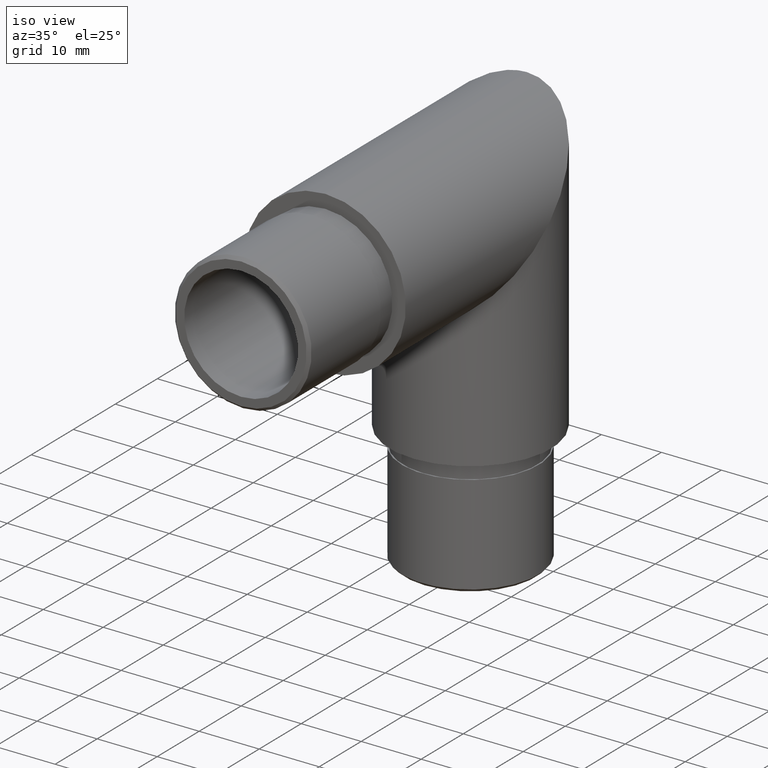
[diagram: clean part render]
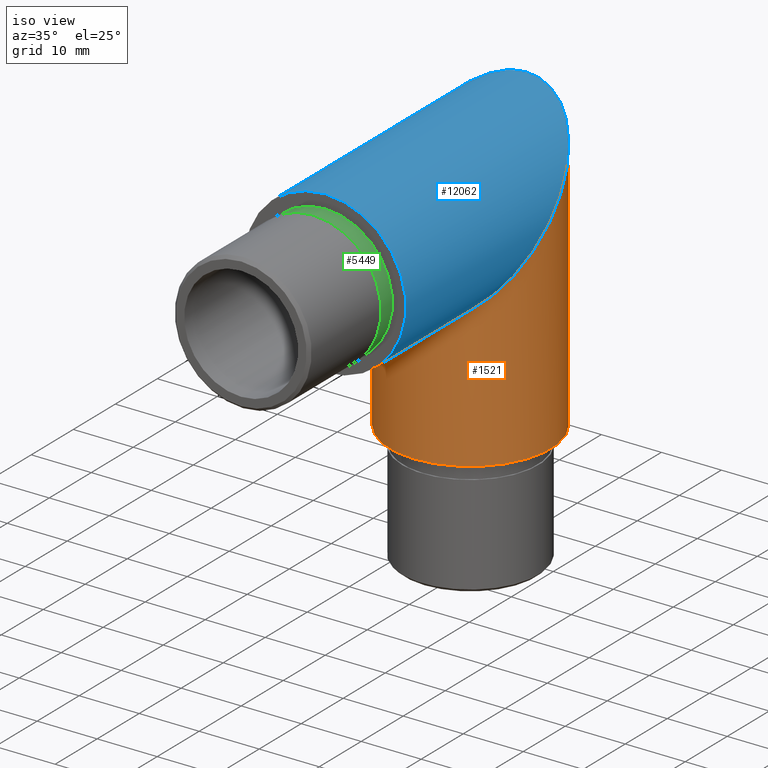
[diagram: same view with three faces highlighted in distinct colors, each labeled with its STEP entity id]
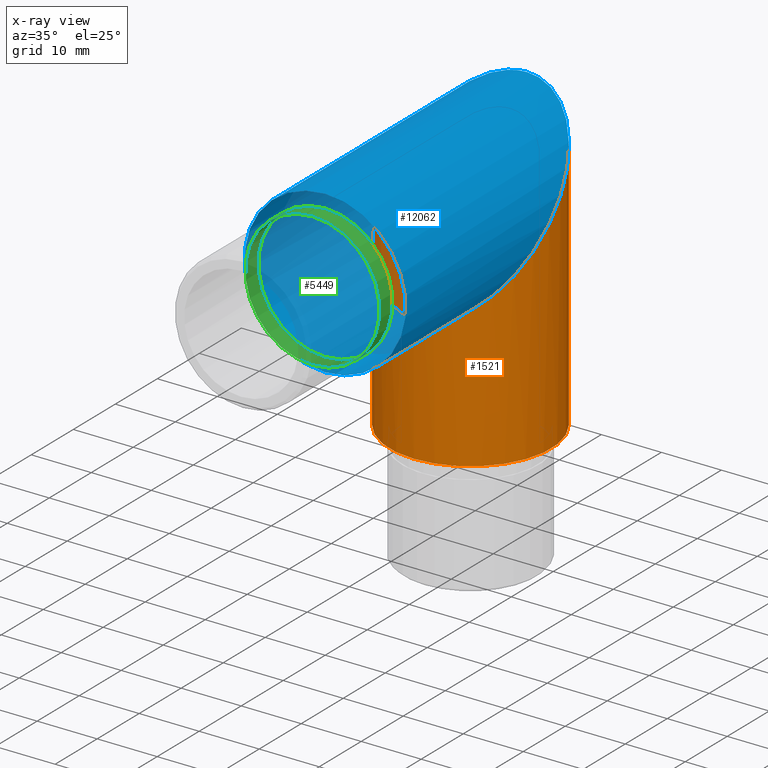
[diagram: x-ray of the same camera — body ghosted, the three highlighted faces saturated]
A machine part, iso view with three faces highlighted in distinct colors.
The next image is the same camera in x-ray (body ghosted, the three faces saturated) — at least one of them is partly hidden behind the body in this view.
Their STEP definitions:

[orange] entity #1521 — the highlighted cylindrical surface (bore or boss wall) has radius 13.45 mm, axis along (0, -0, -1).
#668 = CARTESIAN_POINT ( 'NONE',  ( 0.0000000000000000000, 21.09999999999994800, -13.44999999999999900 ) ) ;
#811 = CIRCLE ( 'NONE', #10118, 13.45000000000000300 ) ;
#914 = EDGE_CURVE ( 'NONE', #4064, #4064, #2283, .T. ) ;
#1062 = EDGE_LOOP ( 'NONE', ( #6624 ) ) ;
#1521 = ADVANCED_FACE ( 'NONE', ( #1729, #5842 ), #10541, .T. ) ;
#1655 = CARTESIAN_POINT ( 'NONE',  ( 26.89999999999999900, 48.00000000000005000, 13.45000000000000500 ) ) ;
#1729 = FACE_OUTER_BOUND ( 'NONE', #3977, .T. ) ;
#2283 =( BOUNDED_CURVE ( )  B_SPLINE_CURVE ( 3, ( #6261, #3519, #7236, #7273, #1655, #6303, #668 ),
 .UNSPECIFIED., .T., .F. ) 
 B_SPLINE_CURVE_WITH_KNOTS ( ( 4, 3, 4 ),
 ( 0.0000000000000000000, 3.141592653589793100, 6.283185307179586200 ),
 .UNSPECIFIED. ) 
 CURVE ( )  GEOMETRIC_REPRESENTATION_ITEM ( )  RATIONAL_B_SPLINE_CURVE ( ( 1.000000000000000000, 0.3333333333333333700, 0.3333333333333333700, 1.000000000000000000, 0.3333333333333333700, 0.3333333333333333700, 1.000000000000000000 ) ) 
 REPRESENTATION_ITEM ( '' )  );
#2970 = ORIENTED_EDGE ( 'NONE', *, *, #914, .T. ) ;
#2985 = DIRECTION ( 'NONE',  ( -0.0000000000000000000, 3.615053263974822800E-015, 1.000000000000000000 ) ) ;
#3519 = CARTESIAN_POINT ( 'NONE',  ( -26.89999999999999900, 21.09999999999994800, -13.44999999999999900 ) ) ;
#3896 = CARTESIAN_POINT ( 'NONE',  ( 0.0000000000000000000, 47.99999999999987900, -34.55000000000004700 ) ) ;
#3931 = DIRECTION ( 'NONE',  ( 0.0000000000000000000, 1.000000000000000000, -3.611320247386661200E-015 ) ) ;
#3977 = EDGE_LOOP ( 'NONE', ( #2970 ) ) ;
#4050 = CARTESIAN_POINT ( 'NONE',  ( 0.0000000000000000000, 34.54999999999999700, 0.0000000000000000000 ) ) ;
#4064 = VERTEX_POINT ( 'NONE', #8357 ) ;
#5057 = AXIS2_PLACEMENT_3D ( 'NONE', #4050, #8749, #7698 ) ;
#5842 = FACE_OUTER_BOUND ( 'NONE', #1062, .T. ) ;
#6261 = CARTESIAN_POINT ( 'NONE',  ( 0.0000000000000000000, 21.09999999999994800, -13.44999999999999900 ) ) ;
#6303 = CARTESIAN_POINT ( 'NONE',  ( 26.89999999999999900, 21.09999999999994800, -13.44999999999999900 ) ) ;
#6624 = ORIENTED_EDGE ( 'NONE', *, *, #11426, .T. ) ;
#6686 = VERTEX_POINT ( 'NONE', #3896 ) ;
#7236 = CARTESIAN_POINT ( 'NONE',  ( -26.89999999999999900, 48.00000000000005000, 13.44999999999999900 ) ) ;
#7273 = CARTESIAN_POINT ( 'NONE',  ( -1.647149944853190000E-015, 48.00000000000004300, 13.44999999999999900 ) ) ;
#7698 = DIRECTION ( 'NONE',  ( 0.0000000000000000000, 1.000000000000000000, -3.615053263974822100E-015 ) ) ;
#8357 = CARTESIAN_POINT ( 'NONE',  ( 0.0000000000000000000, 21.09999999999994800, -13.44999999999999900 ) ) ;
#8623 = CARTESIAN_POINT ( 'NONE',  ( 0.0000000000000000000, 34.54999999999986900, -34.54999999999999700 ) ) ;
#8749 = DIRECTION ( 'NONE',  ( 0.0000000000000000000, -3.615053263974822800E-015, -1.000000000000000000 ) ) ;
#10118 = AXIS2_PLACEMENT_3D ( 'NONE', #8623, #2985, #3931 ) ;
#10541 = CYLINDRICAL_SURFACE ( 'NONE', #5057, 13.45000000000000300 ) ;
#11426 = EDGE_CURVE ( 'NONE', #6686, #6686, #811, .T. ) ;

[blue] entity #12062 — the highlighted cylindrical surface (bore or boss wall) has radius 13.45 mm, axis along (-0, -1, -0).
#244 = CARTESIAN_POINT ( 'NONE',  ( 0.0000000000000000000, 0.0000000000000000000, 0.0000000000000000000 ) ) ;
#655 = DIRECTION ( 'NONE',  ( -0.0000000000000000000, -1.000000000000000000, -0.0000000000000000000 ) ) ;
#668 = CARTESIAN_POINT ( 'NONE',  ( 0.0000000000000000000, 21.09999999999994800, -13.44999999999999900 ) ) ;
#914 = EDGE_CURVE ( 'NONE', #4064, #4064, #2283, .T. ) ;
#947 = AXIS2_PLACEMENT_3D ( 'NONE', #244, #10548, #4923 ) ;
#1552 = CARTESIAN_POINT ( 'NONE',  ( 0.0000000000000000000, 72.59234482783624300, 0.0000000000000000000 ) ) ;
#1655 = CARTESIAN_POINT ( 'NONE',  ( 26.89999999999999900, 48.00000000000005000, 13.45000000000000500 ) ) ;
#2253 = ORIENTED_EDGE ( 'NONE', *, *, #914, .F. ) ;
#2283 =( BOUNDED_CURVE ( )  B_SPLINE_CURVE ( 3, ( #6261, #3519, #7236, #7273, #1655, #6303, #668 ),
 .UNSPECIFIED., .T., .F. ) 
 B_SPLINE_CURVE_WITH_KNOTS ( ( 4, 3, 4 ),
 ( 0.0000000000000000000, 3.141592653589793100, 6.283185307179586200 ),
 .UNSPECIFIED. ) 
 CURVE ( )  GEOMETRIC_REPRESENTATION_ITEM ( )  RATIONAL_B_SPLINE_CURVE ( ( 1.000000000000000000, 0.3333333333333333700, 0.3333333333333333700, 1.000000000000000000, 0.3333333333333333700, 0.3333333333333333700, 1.000000000000000000 ) ) 
 REPRESENTATION_ITEM ( '' )  );
#2358 = ORIENTED_EDGE ( 'NONE', *, *, #5062, .T. ) ;
#2430 = CIRCLE ( 'NONE', #947, 13.44999999999999900 ) ;
#3519 = CARTESIAN_POINT ( 'NONE',  ( -26.89999999999999900, 21.09999999999994800, -13.44999999999999900 ) ) ;
#4064 = VERTEX_POINT ( 'NONE', #8357 ) ;
#4354 = FACE_OUTER_BOUND ( 'NONE', #9258, .T. ) ;
#4923 = DIRECTION ( 'NONE',  ( 0.0000000000000000000, 0.0000000000000000000, 1.000000000000000000 ) ) ;
#5062 = EDGE_CURVE ( 'NONE', #9586, #9586, #2430, .T. ) ;
#5521 = CYLINDRICAL_SURFACE ( 'NONE', #9804, 13.44999999999999900 ) ;
#6261 = CARTESIAN_POINT ( 'NONE',  ( 0.0000000000000000000, 21.09999999999994800, -13.44999999999999900 ) ) ;
#6303 = CARTESIAN_POINT ( 'NONE',  ( 26.89999999999999900, 21.09999999999994800, -13.44999999999999900 ) ) ;
#7236 = CARTESIAN_POINT ( 'NONE',  ( -26.89999999999999900, 48.00000000000005000, 13.44999999999999900 ) ) ;
#7273 = CARTESIAN_POINT ( 'NONE',  ( -1.647149944853190000E-015, 48.00000000000004300, 13.44999999999999900 ) ) ;
#8156 = FACE_OUTER_BOUND ( 'NONE', #10736, .T. ) ;
#8357 = CARTESIAN_POINT ( 'NONE',  ( 0.0000000000000000000, 21.09999999999994800, -13.44999999999999900 ) ) ;
#8587 = CARTESIAN_POINT ( 'NONE',  ( 0.0000000000000000000, 0.0000000000000000000, 13.44999999999999900 ) ) ;
#9258 = EDGE_LOOP ( 'NONE', ( #2253 ) ) ;
#9586 = VERTEX_POINT ( 'NONE', #8587 ) ;
#9804 = AXIS2_PLACEMENT_3D ( 'NONE', #1552, #655, #11868 ) ;
#10548 = DIRECTION ( 'NONE',  ( 0.0000000000000000000, 1.000000000000000000, 0.0000000000000000000 ) ) ;
#10736 = EDGE_LOOP ( 'NONE', ( #2358 ) ) ;
#11868 = DIRECTION ( 'NONE',  ( 0.0000000000000000000, 0.0000000000000000000, -1.000000000000000000 ) ) ;
#12062 = ADVANCED_FACE ( 'NONE', ( #8156, #4354 ), #5521, .T. ) ;

[green] entity #5449 — the highlighted cylindrical surface (bore or boss wall) has radius 11.2 mm, axis along (-0, 1, -0).
#192 = CARTESIAN_POINT ( 'NONE',  ( 0.0000000000000000000, -3.000000000000000000, 0.0000000000000000000 ) ) ;
#1344 = EDGE_LOOP ( 'NONE', ( #6568 ) ) ;
#1698 = VERTEX_POINT ( 'NONE', #4957 ) ;
#2168 = DIRECTION ( 'NONE',  ( 0.0000000000000000000, 0.0000000000000000000, -1.000000000000000000 ) ) ;
#2426 = DIRECTION ( 'NONE',  ( 0.0000000000000000000, 0.0000000000000000000, 1.000000000000000000 ) ) ;
#3467 = AXIS2_PLACEMENT_3D ( 'NONE', #8620, #10495, #2168 ) ;
#4321 = AXIS2_PLACEMENT_3D ( 'NONE', #7890, #7113, #2426 ) ;
#4957 = CARTESIAN_POINT ( 'NONE',  ( 0.0000000000000000000, 0.0000000000000000000, 11.20000000000000100 ) ) ;
#5449 = ADVANCED_FACE ( 'NONE', ( #9006, #7127 ), #10647, .T. ) ;
#5849 = EDGE_LOOP ( 'NONE', ( #6297 ) ) ;
#6297 = ORIENTED_EDGE ( 'NONE', *, *, #10142, .F. ) ;
#6568 = ORIENTED_EDGE ( 'NONE', *, *, #10728, .T. ) ;
#7113 = DIRECTION ( 'NONE',  ( -0.0000000000000000000, -1.000000000000000000, -0.0000000000000000000 ) ) ;
#7127 = FACE_OUTER_BOUND ( 'NONE', #1344, .T. ) ;
#7132 = VERTEX_POINT ( 'NONE', #11573 ) ;
#7569 = CIRCLE ( 'NONE', #4321, 11.20000000000000100 ) ;
#7890 = CARTESIAN_POINT ( 'NONE',  ( 0.0000000000000000000, 0.0000000000000000000, 0.0000000000000000000 ) ) ;
#8581 = DIRECTION ( 'NONE',  ( -0.0000000000000000000, 1.000000000000000000, -0.0000000000000000000 ) ) ;
#8620 = CARTESIAN_POINT ( 'NONE',  ( 0.0000000000000000000, -3.000000000000000000, 0.0000000000000000000 ) ) ;
#9006 = FACE_OUTER_BOUND ( 'NONE', #5849, .T. ) ;
#10142 = EDGE_CURVE ( 'NONE', #7132, #7132, #10365, .T. ) ;
#10365 = CIRCLE ( 'NONE', #3467, 11.20000000000000100 ) ;
#10495 = DIRECTION ( 'NONE',  ( 0.0000000000000000000, -1.000000000000000000, 0.0000000000000000000 ) ) ;
#10647 = CYLINDRICAL_SURFACE ( 'NONE', #11658, 11.20000000000000100 ) ;
#10728 = EDGE_CURVE ( 'NONE', #1698, #1698, #7569, .T. ) ;
#11390 = DIRECTION ( 'NONE',  ( 0.0000000000000000000, 0.0000000000000000000, 1.000000000000000000 ) ) ;
#11573 = CARTESIAN_POINT ( 'NONE',  ( 0.0000000000000000000, -3.000000000000000000, -11.20000000000000100 ) ) ;
#11658 = AXIS2_PLACEMENT_3D ( 'NONE', #192, #8581, #11390 ) ;